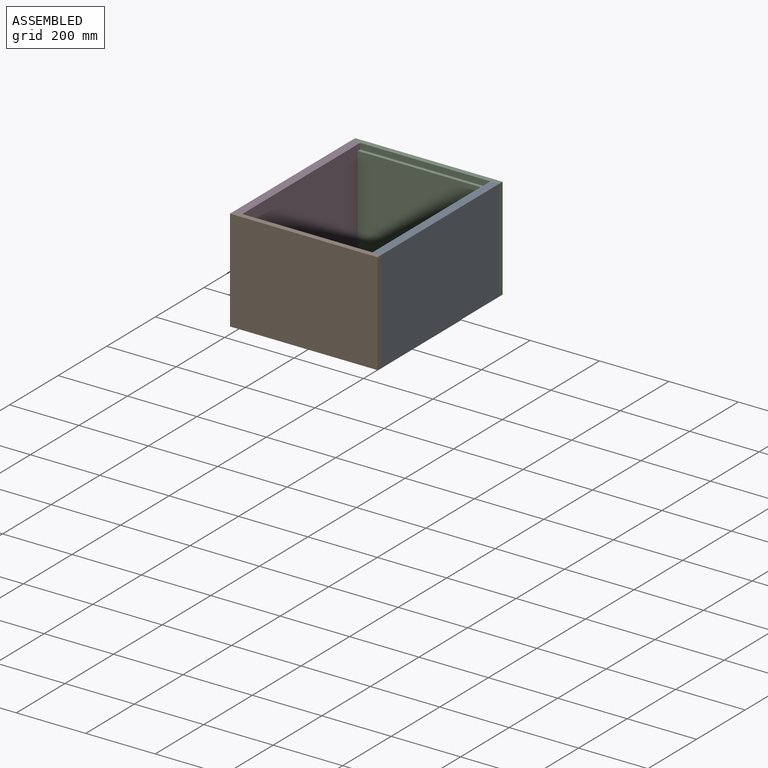
[diagram: assembled view]
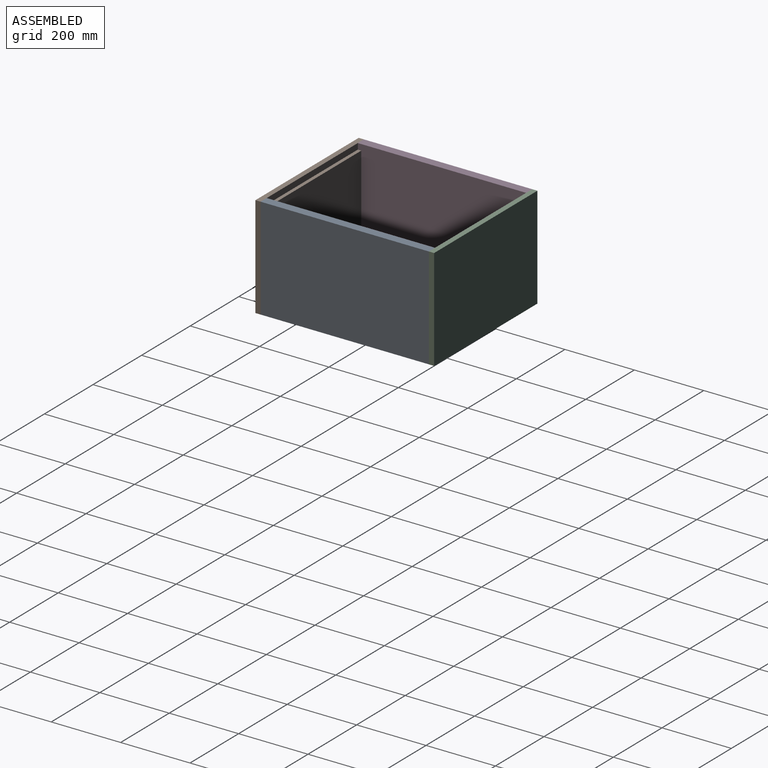
[diagram: assembled view, second angle]
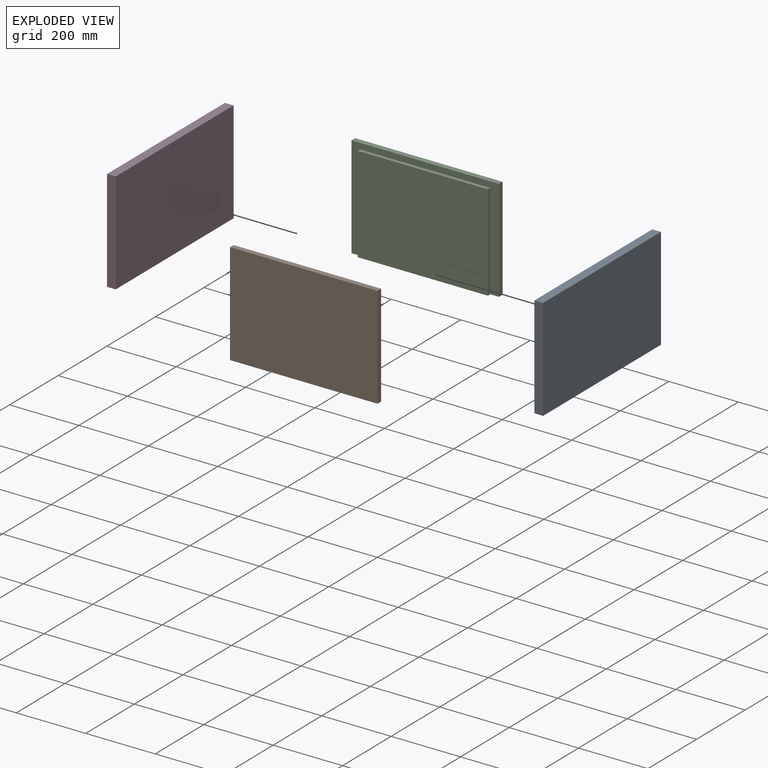
[diagram: exploded view]
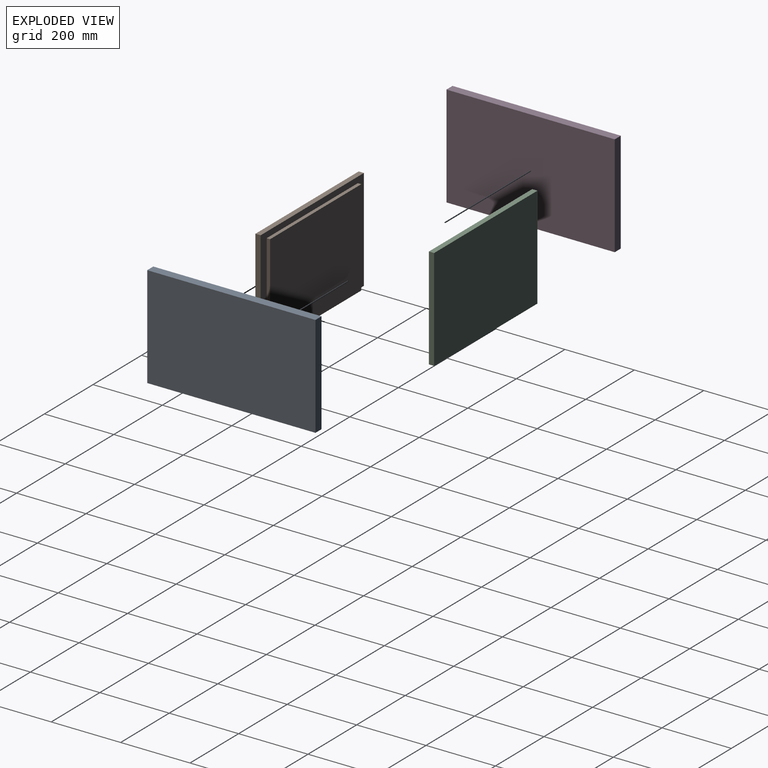
[diagram: exploded view, second angle]
ASSEMBLY  parts=4 mates=3
PART A: 6 faces, bbox 485x25x294 mm
  f0: plane 485x25mm, normal (0,0,1), area 12125mm2, adj f1,f3,f4,f5
  f1: plane 294x25mm, normal (-1,0,0), area 7350mm2, adj f0,f2,f4,f5
  f2: plane 485x25mm, normal (0,0,-1), area 12125mm2, adj f1,f3,f4,f5
  f3: plane 294x25mm, normal (1,0,0), area 7350mm2, adj f0,f2,f4,f5
  f4: plane 485x294mm, normal (0,-1,0), area 142590mm2, adj f0,f1,f2,f3
  f5: plane 485x294mm, normal (0,1,0), area 142590mm2, adj f0,f1,f2,f3
PART B: 10 faces, bbox 425x25x294 mm
  f0: plane 425x294mm, normal (0,-1,0), area 21075mm2, adj f1,f2,f3,f4,f6,f7,f8
  f1: plane 425x15mm, normal (0,0,1), area 6375mm2, adj f0,f2,f4,f5
  f2: plane 294x15mm, normal (-1,0,0), area 4410mm2, adj f0,f1,f3,f5
  f3: plane 425x25mm, normal (0,0,-1), area 10125mm2, adj f0,f2,f4,f5,f6,f8,f9
  f4: plane 294x15mm, normal (1,0,0), area 4410mm2, adj f0,f1,f3,f5
  f5: plane 425x294mm, normal (0,1,0), area 124950mm2, adj f1,f2,f3,f4
  f6: plane 277x10mm, normal (1,0,0), area 2770mm2, adj f0,f3,f7,f9
  f7: plane 375x10mm, normal (0,0,1), area 3750mm2, adj f0,f6,f8,f9
  f8: plane 277x10mm, normal (-1,0,0), area 2770mm2, adj f0,f3,f7,f9
  f9: plane 375x277mm, normal (0,-1,0), area 103875mm2, adj f3,f6,f7,f8
PART C: same geometry as B
PART D: same geometry as A
PLACE A rot(axis=(0,0,-1),90deg) t=(212.5,-245.37,0)mm
PLACE B rot(axis=(0,0,1),180deg) t=(0,-502.87,0)mm
PLACE C t=(0,12.13,0)mm
PLACE D rot(axis=(0,0,-1),90deg) t=(-187.5,-245.37,0)mm
MATE fastened A.f2 <-> C.f3  axis (0,0,-1) through (200,-2.87,0)mm
MATE fastened B.f3 <-> A.f2  axis (0,0,-1) through (200,-487.87,0)mm
MATE fastened D.f2 <-> C.f3  axis (0,0,-1) through (-200,-2.87,0)mm
